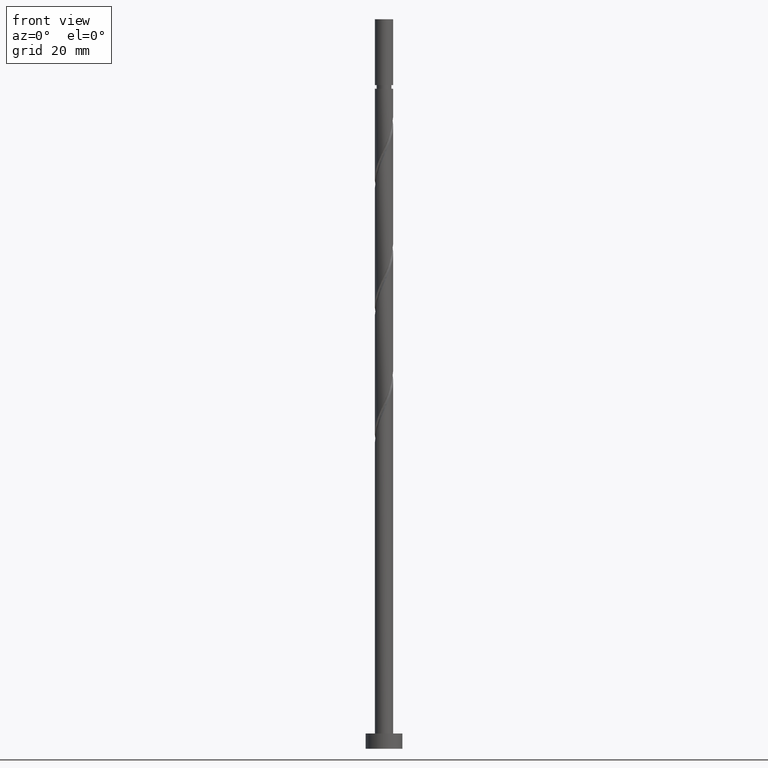
[diagram: clean part render]
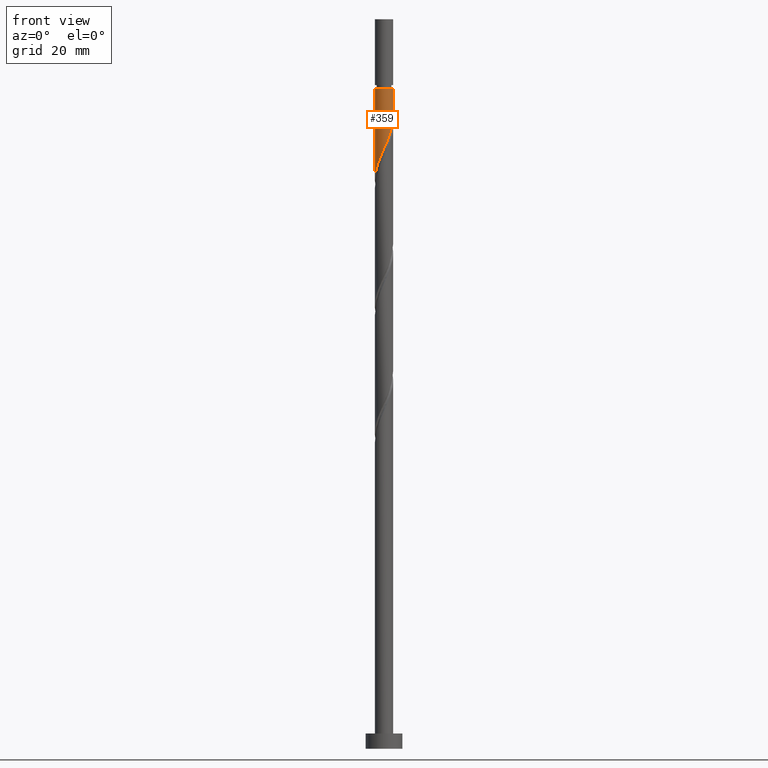
[diagram: same view with one face highlighted and labeled with its STEP entity id]
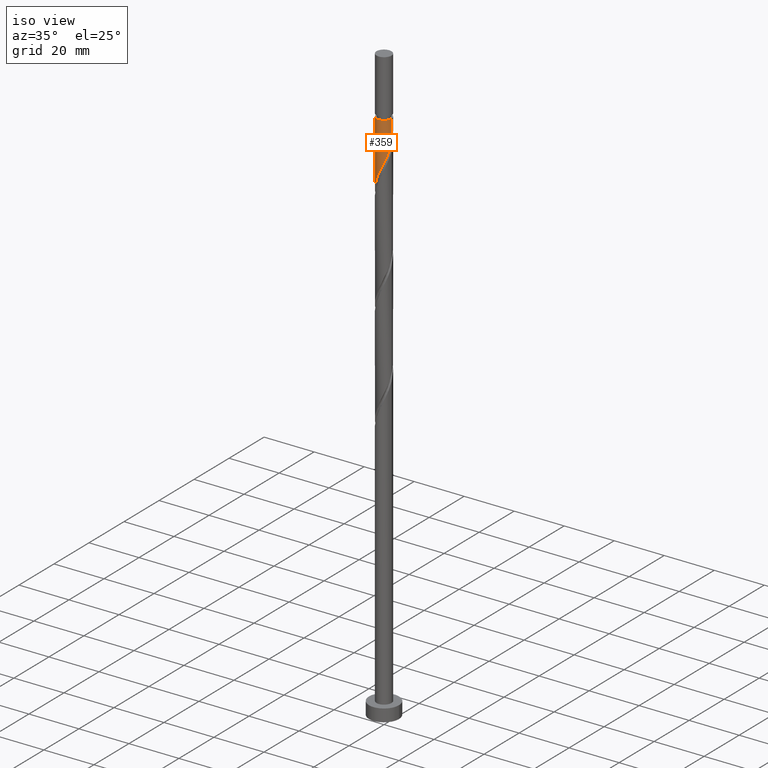
[diagram: same view with one face highlighted and labeled with its STEP entity id]
A machine part, front view. The second image highlights one B-rep face of the part: STEP entity #359.
A second angle (iso view) of the same face is appended — the face is thin or edge-on in the first view.
In plain terms, the highlighted cylindrical surface (edge-blend (fillet) strip) has radius 3 mm, axis along (-0, -0, -1).
Its self-contained STEP definition (entity closure, byte-faithful):
#66 = CYLINDRICAL_SURFACE ( 'NONE', #956, 3.000000000000000444 ) ;
#87 = DIRECTION ( 'NONE',  ( -0.000000000000000000, -0.000000000000000000, -1.000000000000000000 ) ) ;
#89 = CARTESIAN_POINT ( 'NONE',  ( -0.9539730929374207191, -2.867511991263167914, 194.5698054770816441 ) ) ;
#100 = CARTESIAN_POINT ( 'NONE',  ( 1.187453060654100279, -2.778964719248853132, 199.3774977847739649 ) ) ;
#118 = LINE ( 'NONE', #1232, #1817 ) ;
#128 = CARTESIAN_POINT ( 'NONE',  ( 2.342886767063566467, -1.908814102736323459, 202.5826259899020556 ) ) ;
#225 = ORIENTED_EDGE ( 'NONE', *, *, #1137, .F. ) ;
#231 = CARTESIAN_POINT ( 'NONE',  ( 0.000000000000000000, 0.000000000000000000, 239.0000000000000284 ) ) ;
#249 = CARTESIAN_POINT ( 'NONE',  ( 3.000000000000000888, -0.1193193910103086397, 206.8515051552892317 ) ) ;
#268 = CARTESIAN_POINT ( 'NONE',  ( 0.4878980450008937875, -2.982389173091089418, 197.7749336822098485 ) ) ;
#359 = ADVANCED_FACE ( 'NONE', ( #374 ), #66, .T. ) ;
#374 = FACE_OUTER_BOUND ( 'NONE', #1036, .T. ) ;
#380 = CARTESIAN_POINT ( 'NONE',  ( -2.901834587494012130, -0.8438280090812981804, 188.1595490668252353 ) ) ;
#409 =( BOUNDED_CURVE ( )  B_SPLINE_CURVE ( 2, ( #1383, #249, #552, #683, #1414, #828, #561, #128, #1372, #1688, #1091, #100, #1241, #268, #1271, #1100, #532, #89, #801, #1118, #1550, #1542, #1795, #1680, #1661, #380, #692, #410, #1250 ),
 .UNSPECIFIED., .F., .T. ) 
 B_SPLINE_CURVE_WITH_KNOTS ( ( 3, 2, 2, 2, 2, 2, 2, 2, 2, 2, 2, 2, 2, 2, 3 ),
 ( 0.3045271625973833274, 0.3076923076923077094, 0.3173076923076922906, 0.3269230769230769273, 0.3365384615384615641, 0.3461538461538461453, 0.3557692307692307820, 0.3653846153846153633, 0.3750000000000000000, 0.3846153846153846367, 0.3942307692307692180, 0.4038461538461538547, 0.4134615384615384359, 0.4230769230769230727, 0.4295271625973831053 ),
 .UNSPECIFIED. ) 
 CURVE ( )  GEOMETRIC_REPRESENTATION_ITEM ( )  RATIONAL_B_SPLINE_CURVE ( ( 0.9061636035682831825, 0.9069090390690719428, 0.9090909090909286006, 0.9024626128164319194, 0.9090909090909286006, 0.9024626128164319194, 0.9090909090909286006, 0.9024626128164319194, 0.9090909090909286006, 0.9024626128164319194, 0.9090909090909286006, 0.9024626128164319194, 0.9090909090909286006, 0.9024626128164319194, 0.9090909090909286006, 0.9024626128164319194, 0.9090909090909286006, 0.9024626128164319194, 0.9090909090909286006, 0.9024626128164319194, 0.9090909090909286006, 0.9024626128164319194, 0.9090909090909286006, 0.9024626128164319194, 0.9090909090909286006, 0.9024626128164319194, 0.9090909090909286006, 0.9046444828382886882, 0.9061636035682831825 ) ) 
 REPRESENTATION_ITEM ( '' )  );
#410 = CARTESIAN_POINT ( 'NONE',  ( -3.000000000000000000, -0.2437693156111427339, 186.8220434749372316 ) ) ;
#532 = CARTESIAN_POINT ( 'NONE',  ( -0.5969924622639734002, -2.939999999999999503, 195.3710875283636312 ) ) ;
#552 = CARTESIAN_POINT ( 'NONE',  ( 2.990523579387029507, -0.2382618751084462361, 206.5890362463123040 ) ) ;
#561 = CARTESIAN_POINT ( 'NONE',  ( 2.537251308848757159, -1.600736016882629231, 203.3839080411841280 ) ) ;
#642 = VERTEX_POINT ( 'NONE', #1264 ) ;
#675 = DIRECTION ( 'NONE',  ( -0.000000000000000000, -0.000000000000000000, -1.000000000000000000 ) ) ;
#683 = CARTESIAN_POINT ( 'NONE',  ( 2.961593349985107704, -0.6013771789905509868, 205.7877541950304305 ) ) ;
#692 = CARTESIAN_POINT ( 'NONE',  ( -2.960644198141480832, -0.4843407189274795965, 187.3582670155431344 ) ) ;
#710 = LINE ( 'NONE', #1007, #1527 ) ;
#737 = DIRECTION ( 'NONE',  ( -1.000000000000000000, 0.000000000000000000, 0.000000000000000000 ) ) ;
#770 = DIRECTION ( 'NONE',  ( -1.000000000000000000, 0.000000000000000000, 0.000000000000000000 ) ) ;
#789 = ORIENTED_EDGE ( 'NONE', *, *, #1068, .T. ) ;
#791 = CARTESIAN_POINT ( 'NONE',  ( -2.999999999999986233, 0.000000000000000000, 216.2044208616970025 ) ) ;
#801 = CARTESIAN_POINT ( 'NONE',  ( -1.283232999305656596, -2.711699295551224687, 193.7685234257995148 ) ) ;
#817 = CARTESIAN_POINT ( 'NONE',  ( 2.999999999999986233, 3.673940397442051486E-16, 216.2044208616970025 ) ) ;
#825 = CARTESIAN_POINT ( 'NONE',  ( -3.000000000000000444, -4.292354359053277404E-15, 186.2823427375888912 ) ) ;
#828 = CARTESIAN_POINT ( 'NONE',  ( 2.731615850633949627, -1.292657931028937224, 204.1851900924662573 ) ) ;
#956 = AXIS2_PLACEMENT_3D ( 'NONE', #231, #1772, #770 ) ;
#1007 = CARTESIAN_POINT ( 'NONE',  ( 3.000000000000000444, 3.673940397442060361E-16, 239.0000000000000284 ) ) ;
#1027 = DIRECTION ( 'NONE',  ( -0.000000000000000000, -0.000000000000000000, -1.000000000000000000 ) ) ;
#1036 = EDGE_LOOP ( 'NONE', ( #1809, #1508, #789, #225 ) ) ;
#1068 = EDGE_CURVE ( 'NONE', #1407, #1433, #118, .T. ) ;
#1091 = CARTESIAN_POINT ( 'NONE',  ( 1.502725340646222651, -2.596500828149240547, 200.1787798360559520 ) ) ;
#1100 = CARTESIAN_POINT ( 'NONE',  ( -0.2400118315905279132, -3.012488008736832867, 196.1723695796457605 ) ) ;
#1118 = CARTESIAN_POINT ( 'NONE',  ( -1.612492905673893029, -2.555886599839282791, 192.9672413745174993 ) ) ;
#1137 = EDGE_CURVE ( 'NONE', #642, #1433, #409, .T. ) ;
#1205 = EDGE_CURVE ( 'NONE', #1500, #642, #710, .T. ) ;
#1232 = CARTESIAN_POINT ( 'NONE',  ( -3.000000000000000444, 0.000000000000000000, 239.0000000000000284 ) ) ;
#1241 = CARTESIAN_POINT ( 'NONE',  ( 0.8376755528274976159, -2.880676946169971497, 198.5762157334918072 ) ) ;
#1250 = CARTESIAN_POINT ( 'NONE',  ( -3.000000000000000444, -4.292354359053276616E-15, 186.2823427375888912 ) ) ;
#1264 = CARTESIAN_POINT ( 'NONE',  ( 3.000000000000000888, -1.091783512929927736E-15, 207.1156760709221771 ) ) ;
#1271 = CARTESIAN_POINT ( 'NONE',  ( 0.1239431067051829788, -2.997438590913960699, 196.9736516309277192 ) ) ;
#1370 = CARTESIAN_POINT ( 'NONE',  ( 0.000000000000000000, 0.000000000000000000, 216.2044208616970025 ) ) ;
#1372 = CARTESIAN_POINT ( 'NONE',  ( 2.080442193850956301, -2.161425519892975711, 201.7813439386200400 ) ) ;
#1383 = CARTESIAN_POINT ( 'NONE',  ( 3.000000000000000888, -1.091783512929927736E-15, 207.1156760709221487 ) ) ;
#1407 = VERTEX_POINT ( 'NONE', #791 ) ;
#1414 = CARTESIAN_POINT ( 'NONE',  ( 2.846604600309527111, -0.9470175550097449380, 204.9864721437482160 ) ) ;
#1433 = VERTEX_POINT ( 'NONE', #825 ) ;
#1500 = VERTEX_POINT ( 'NONE', #817 ) ;
#1508 = ORIENTED_EDGE ( 'NONE', *, *, #1673, .T. ) ;
#1527 = VECTOR ( 'NONE', #1027, 1000.000000000000000 ) ;
#1542 = CARTESIAN_POINT ( 'NONE',  ( -2.177300491905830526, -2.095722369502524440, 191.3646772719533828 ) ) ;
#1550 = CARTESIAN_POINT ( 'NONE',  ( -1.894896698789861222, -2.325804484670903616, 192.1659593232353984 ) ) ;
#1587 = AXIS2_PLACEMENT_3D ( 'NONE', #1370, #87, #737 ) ;
#1661 = CARTESIAN_POINT ( 'NONE',  ( -2.758702937603743521, -1.178795190886219979, 188.9608311181071940 ) ) ;
#1673 = EDGE_CURVE ( 'NONE', #1500, #1407, #1704, .T. ) ;
#1680 = CARTESIAN_POINT ( 'NONE',  ( -2.615571287713475357, -1.513762372691142666, 189.7621131693893517 ) ) ;
#1688 = CARTESIAN_POINT ( 'NONE',  ( 1.817997620638345690, -2.414036937049630627, 200.9800618873380529 ) ) ;
#1704 = CIRCLE ( 'NONE', #1587, 2.999999999999986233 ) ;
#1772 = DIRECTION ( 'NONE',  ( -0.000000000000000000, -0.000000000000000000, -1.000000000000000000 ) ) ;
#1795 = CARTESIAN_POINT ( 'NONE',  ( -2.396435889809652942, -1.804742371096832665, 190.5633952206713388 ) ) ;
#1809 = ORIENTED_EDGE ( 'NONE', *, *, #1205, .F. ) ;
#1817 = VECTOR ( 'NONE', #675, 1000.000000000000000 ) ;